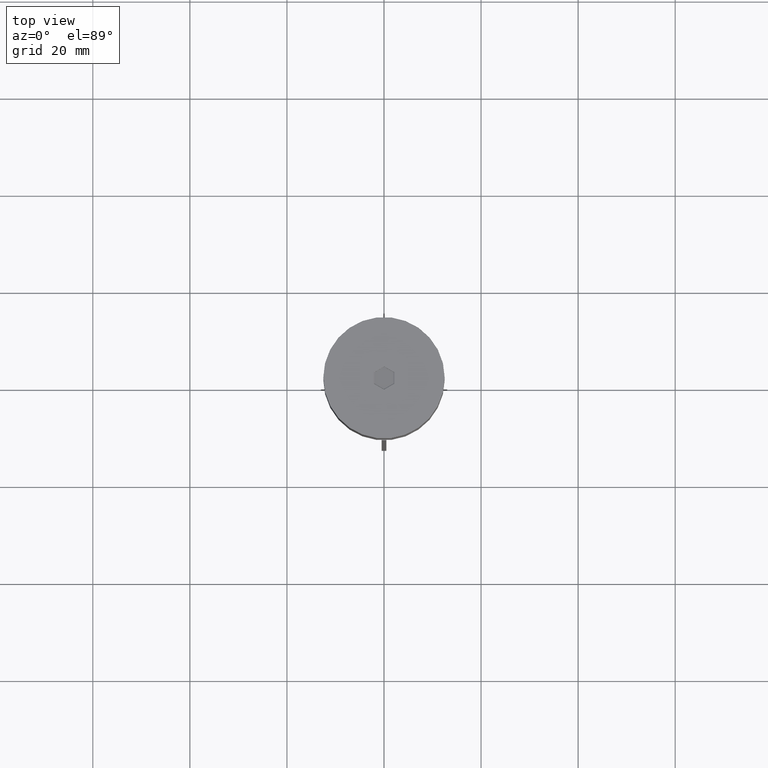
[diagram: clean part render]
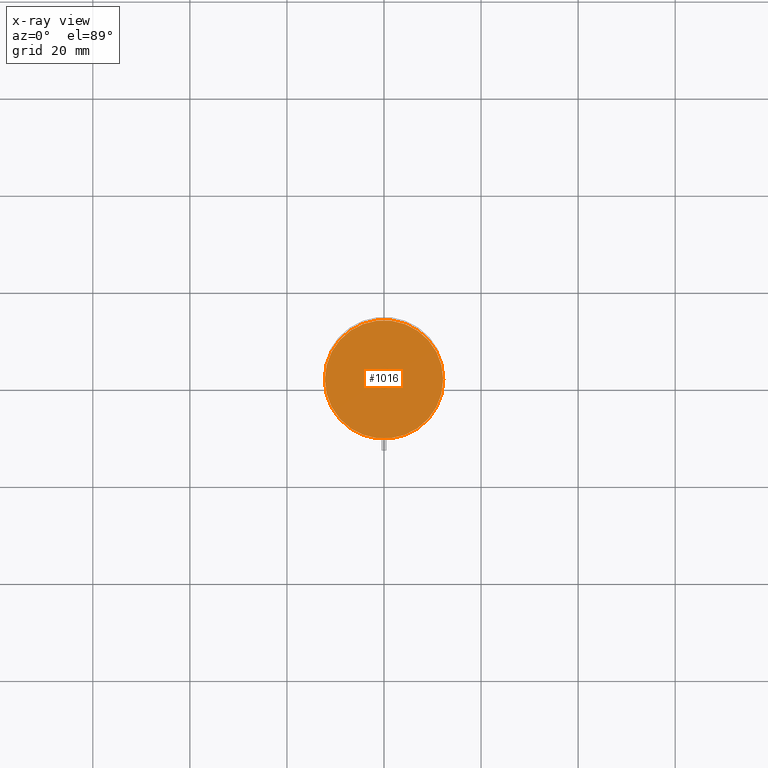
[diagram: x-ray — body ghosted, one internal face saturated and labeled with its STEP entity id]
A machine part, top view, then the same camera in x-ray: the body is ghosted and one INTERNAL B-rep face — a face not visible from any outside direction — is saturated and labeled: STEP entity #1016.
In plain terms, the highlighted planar face has unit normal (0, 0, -1).
Its self-contained STEP definition (entity closure, byte-faithful):
#99 = EDGE_LOOP ( 'NONE', ( #961, #1153 ) ) ;
#107 = CIRCLE ( 'NONE', #1138, 12.20000000000000639 ) ;
#196 = DIRECTION ( 'NONE',  ( 0.000000000000000000, 0.000000000000000000, -1.000000000000000000 ) ) ;
#260 = CARTESIAN_POINT ( 'NONE',  ( 12.20000000000000639, 1.512438796946981880E-15, -20.49999999999999645 ) ) ;
#333 = VERTEX_POINT ( 'NONE', #522 ) ;
#344 = CARTESIAN_POINT ( 'NONE',  ( 0.000000000000000000, 0.000000000000000000, -20.49999999999999645 ) ) ;
#379 = AXIS2_PLACEMENT_3D ( 'NONE', #1083, #691, #916 ) ;
#494 = FACE_OUTER_BOUND ( 'NONE', #99, .T. ) ;
#522 = CARTESIAN_POINT ( 'NONE',  ( -12.20000000000000639, 0.000000000000000000, -20.49999999999999645 ) ) ;
#691 = DIRECTION ( 'NONE',  ( -0.000000000000000000, -0.000000000000000000, 1.000000000000000000 ) ) ;
#732 = CARTESIAN_POINT ( 'NONE',  ( 0.000000000000000000, 0.000000000000000000, -20.49999999999999645 ) ) ;
#744 = DIRECTION ( 'NONE',  ( -0.000000000000000000, -0.000000000000000000, 1.000000000000000000 ) ) ;
#916 = DIRECTION ( 'NONE',  ( -1.000000000000000000, 0.000000000000000000, 0.000000000000000000 ) ) ;
#952 = DIRECTION ( 'NONE',  ( -1.000000000000000000, 0.000000000000000000, -0.000000000000000000 ) ) ;
#961 = ORIENTED_EDGE ( 'NONE', *, *, #1627, .T. ) ;
#1016 = ADVANCED_FACE ( 'NONE', ( #494 ), #1426, .F. ) ;
#1079 = VERTEX_POINT ( 'NONE', #260 ) ;
#1083 = CARTESIAN_POINT ( 'NONE',  ( 0.000000000000000000, 0.000000000000000000, -20.49999999999999645 ) ) ;
#1138 = AXIS2_PLACEMENT_3D ( 'NONE', #732, #744, #2024 ) ;
#1153 = ORIENTED_EDGE ( 'NONE', *, *, #1448, .T. ) ;
#1426 = PLANE ( 'NONE',  #1481 ) ;
#1448 = EDGE_CURVE ( 'NONE', #1079, #333, #1957, .T. ) ;
#1481 = AXIS2_PLACEMENT_3D ( 'NONE', #344, #196, #952 ) ;
#1627 = EDGE_CURVE ( 'NONE', #333, #1079, #107, .T. ) ;
#1957 = CIRCLE ( 'NONE', #379, 12.20000000000000639 ) ;
#2024 = DIRECTION ( 'NONE',  ( -1.000000000000000000, 0.000000000000000000, 0.000000000000000000 ) ) ;